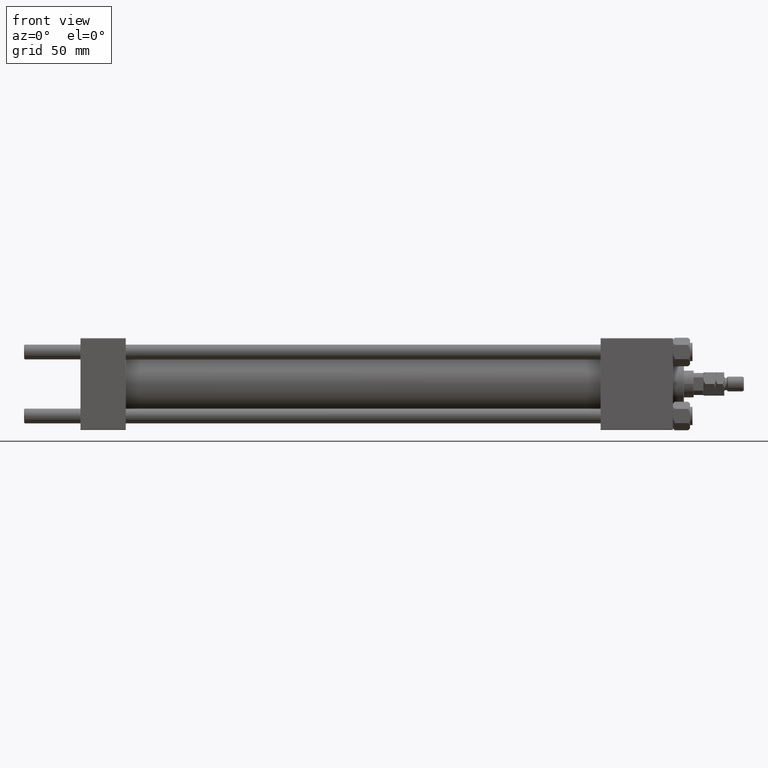
[diagram: clean part render]
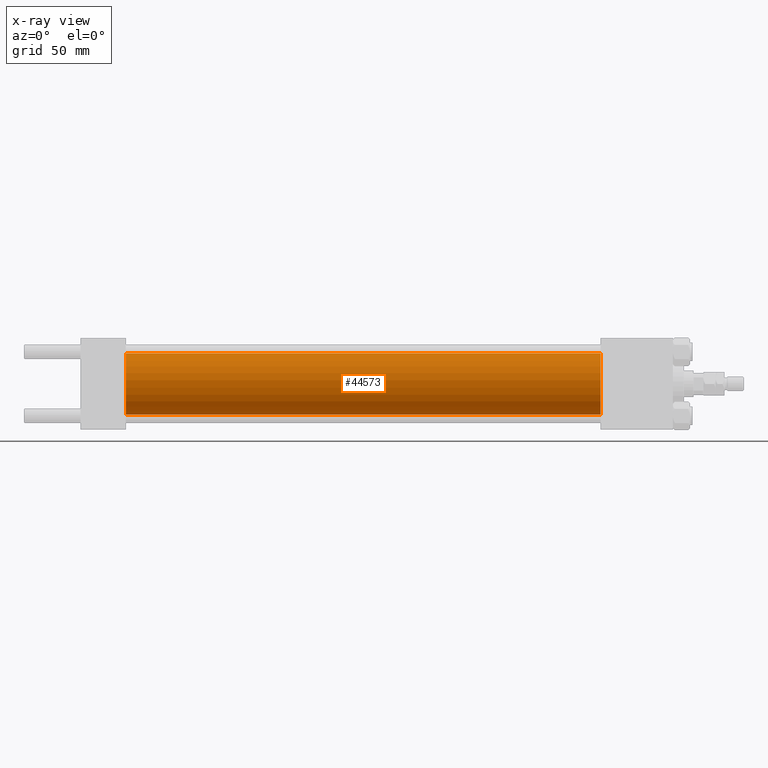
[diagram: x-ray — body ghosted, one internal face saturated and labeled with its STEP entity id]
A machine part, front view, then the same camera in x-ray: the body is ghosted and one INTERNAL B-rep face — a face not visible from any outside direction — is saturated and labeled: STEP entity #44573.
In plain terms, the highlighted cylindrical surface (edge-blend (fillet) strip) has radius 25 mm, axis along (-1, -0, -0).
Its self-contained STEP definition (entity closure, byte-faithful):
#164 = EDGE_CURVE ( 'NONE', #5971, #35496, #37944, .T. ) ;
#703 = DIRECTION ( 'NONE',  ( -1.000000000000000000, -0.000000000000000000, -0.000000000000000000 ) ) ;
#3749 = CYLINDRICAL_SURFACE ( 'NONE', #37059, 25.00000000000000000 ) ;
#5971 = VERTEX_POINT ( 'NONE', #20438 ) ;
#6309 = VERTEX_POINT ( 'NONE', #24713 ) ;
#7896 = DIRECTION ( 'NONE',  ( -1.000000000000000000, -0.000000000000000000, -0.000000000000000000 ) ) ;
#8319 = LINE ( 'NONE', #28287, #33930 ) ;
#11022 = FACE_OUTER_BOUND ( 'NONE', #23057, .T. ) ;
#13208 = DIRECTION ( 'NONE',  ( 0.000000000000000000, 0.000000000000000000, -1.000000000000000000 ) ) ;
#13933 = AXIS2_PLACEMENT_3D ( 'NONE', #16843, #48734, #13208 ) ;
#16843 = CARTESIAN_POINT ( 'NONE',  ( 425.0000000000000000, 0.000000000000000000, 0.000000000000000000 ) ) ;
#17849 = VECTOR ( 'NONE', #703, 1000.000000000000000 ) ;
#19576 = CARTESIAN_POINT ( 'NONE',  ( 425.0000000000000000, 0.000000000000000000, 0.000000000000000000 ) ) ;
#20438 = CARTESIAN_POINT ( 'NONE',  ( 425.0000000000000000, 0.000000000000000000, 25.00000000000000000 ) ) ;
#20514 = ORIENTED_EDGE ( 'NONE', *, *, #22688, .T. ) ;
#22109 = CIRCLE ( 'NONE', #25408, 25.00000000000000000 ) ;
#22688 = EDGE_CURVE ( 'NONE', #35496, #29874, #8319, .T. ) ;
#23057 = EDGE_LOOP ( 'NONE', ( #51341, #20514, #45810, #45953 ) ) ;
#24713 = CARTESIAN_POINT ( 'NONE',  ( 37.00000000000000000, 0.000000000000000000, 25.00000000000000000 ) ) ;
#25408 = AXIS2_PLACEMENT_3D ( 'NONE', #29595, #48551, #40768 ) ;
#26837 = DIRECTION ( 'NONE',  ( 0.000000000000000000, 0.000000000000000000, 1.000000000000000000 ) ) ;
#28287 = CARTESIAN_POINT ( 'NONE',  ( 425.0000000000000000, 3.061616997868382254E-15, -25.00000000000000000 ) ) ;
#29595 = CARTESIAN_POINT ( 'NONE',  ( 37.00000000000000000, 0.000000000000000000, 0.000000000000000000 ) ) ;
#29874 = VERTEX_POINT ( 'NONE', #32028 ) ;
#30803 = CARTESIAN_POINT ( 'NONE',  ( 425.0000000000000000, 3.061616997868382254E-15, -25.00000000000000000 ) ) ;
#32028 = CARTESIAN_POINT ( 'NONE',  ( 37.00000000000000000, 3.061616997868382254E-15, -25.00000000000000000 ) ) ;
#33930 = VECTOR ( 'NONE', #40467, 1000.000000000000000 ) ;
#35496 = VERTEX_POINT ( 'NONE', #30803 ) ;
#36763 = CARTESIAN_POINT ( 'NONE',  ( 425.0000000000000000, 0.000000000000000000, 25.00000000000000000 ) ) ;
#37012 = LINE ( 'NONE', #36763, #17849 ) ;
#37059 = AXIS2_PLACEMENT_3D ( 'NONE', #19576, #7896, #26837 ) ;
#37944 = CIRCLE ( 'NONE', #13933, 25.00000000000000000 ) ;
#40467 = DIRECTION ( 'NONE',  ( -1.000000000000000000, -0.000000000000000000, -0.000000000000000000 ) ) ;
#40760 = EDGE_CURVE ( 'NONE', #5971, #6309, #37012, .T. ) ;
#40768 = DIRECTION ( 'NONE',  ( 0.000000000000000000, 0.000000000000000000, -1.000000000000000000 ) ) ;
#44573 = ADVANCED_FACE ( 'NONE', ( #11022 ), #3749, .F. ) ;
#45810 = ORIENTED_EDGE ( 'NONE', *, *, #51200, .F. ) ;
#45953 = ORIENTED_EDGE ( 'NONE', *, *, #40760, .F. ) ;
#48551 = DIRECTION ( 'NONE',  ( 1.000000000000000000, 0.000000000000000000, 0.000000000000000000 ) ) ;
#48734 = DIRECTION ( 'NONE',  ( 1.000000000000000000, 0.000000000000000000, 0.000000000000000000 ) ) ;
#51200 = EDGE_CURVE ( 'NONE', #6309, #29874, #22109, .T. ) ;
#51341 = ORIENTED_EDGE ( 'NONE', *, *, #164, .T. ) ;